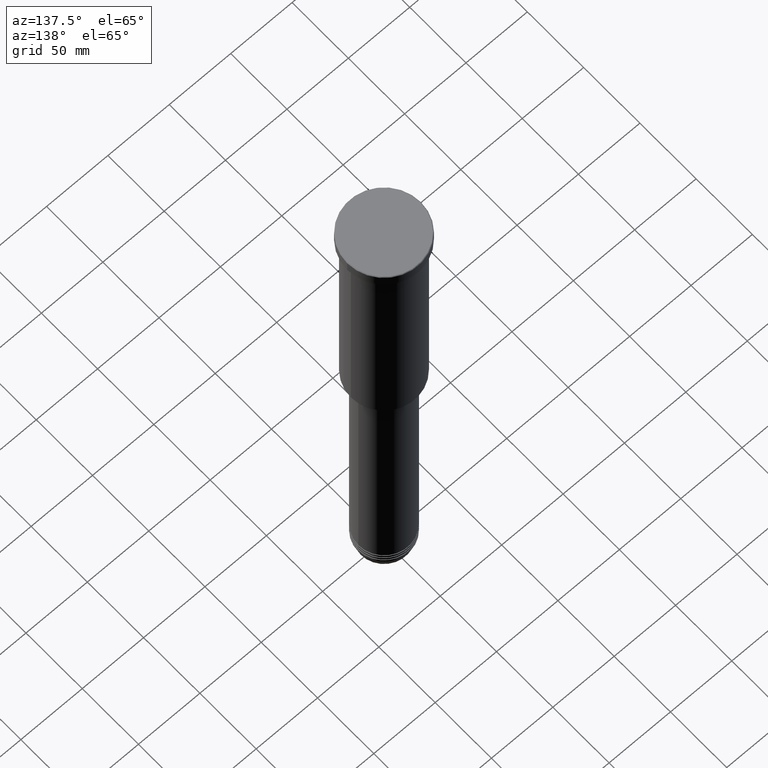
[diagram: clean part render]
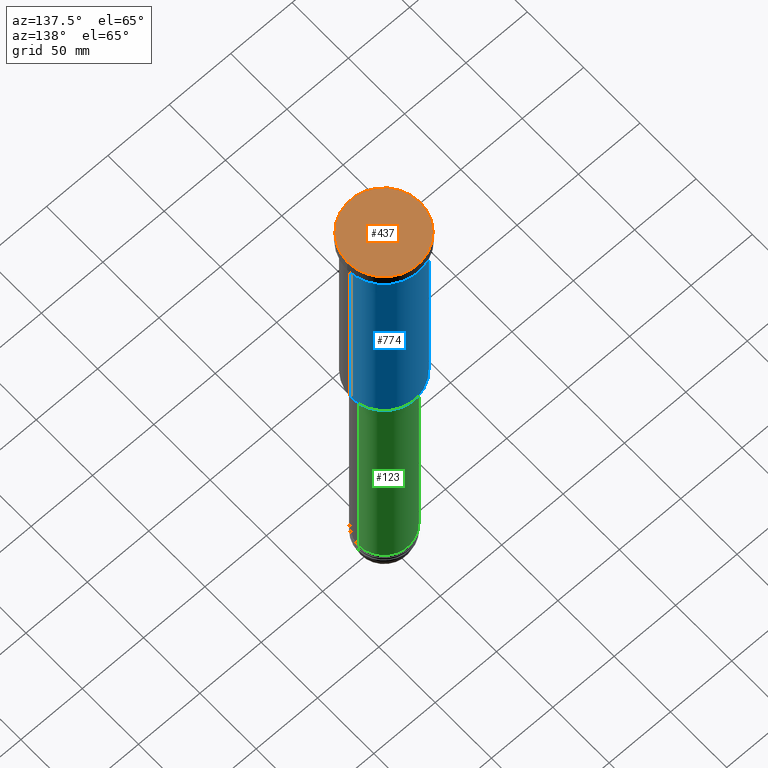
[diagram: same view with three faces highlighted in distinct colors, each labeled with its STEP entity id]
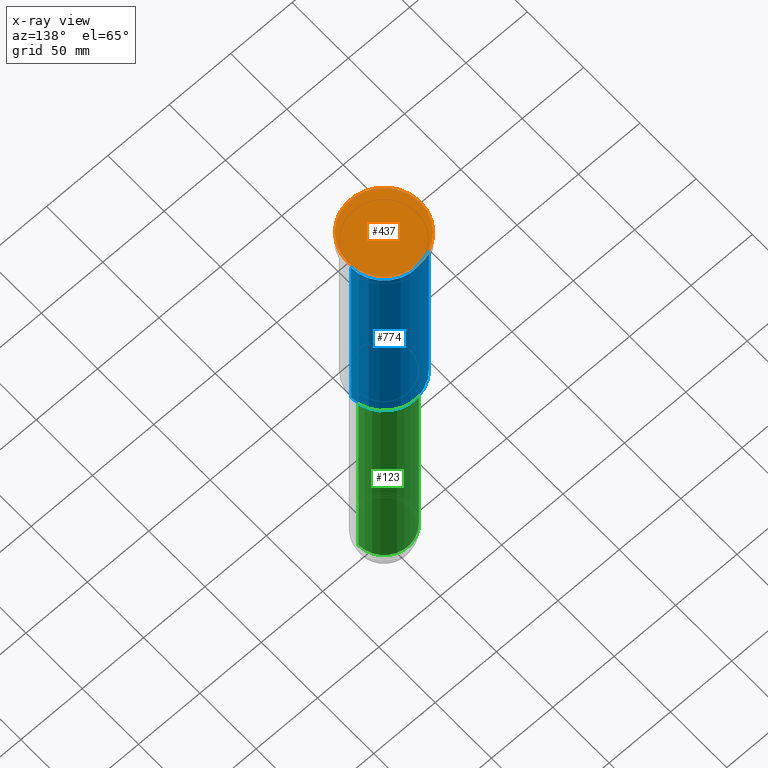
[diagram: x-ray of the same camera — body ghosted, the three highlighted faces saturated]
A machine part, auxiliary view with three faces highlighted in distinct colors.
The next image is the same camera in x-ray (body ghosted, the three faces saturated) — at least one of them is partly hidden behind the body in this view.
Their STEP definitions:

[orange] entity #437 — the highlighted planar face has unit normal (0, -0, 1).
#4 = CARTESIAN_POINT ( 'NONE',  ( -29.49999999999997158, 0.000000000000000000, 0.000000000000000000 ) ) ;
#17 = PLANE ( 'NONE',  #292 ) ;
#34 = DIRECTION ( 'NONE',  ( -0.000000000000000000, -0.000000000000000000, 1.000000000000000000 ) ) ;
#122 = DIRECTION ( 'NONE',  ( 1.000000000000000000, 0.000000000000000000, 0.000000000000000000 ) ) ;
#292 = AXIS2_PLACEMENT_3D ( 'NONE', #1019, #299, #666 ) ;
#299 = DIRECTION ( 'NONE',  ( 0.000000000000000000, -0.000000000000000000, 1.000000000000000000 ) ) ;
#409 = FACE_OUTER_BOUND ( 'NONE', #523, .T. ) ;
#423 = CIRCLE ( 'NONE', #1026, 29.49999999999997158 ) ;
#431 = CIRCLE ( 'NONE', #1093, 29.49999999999997158 ) ;
#437 = ADVANCED_FACE ( 'NONE', ( #409 ), #17, .T. ) ;
#491 = VERTEX_POINT ( 'NONE', #1010 ) ;
#523 = EDGE_LOOP ( 'NONE', ( #1035, #1135 ) ) ;
#634 = CARTESIAN_POINT ( 'NONE',  ( 0.000000000000000000, 0.000000000000000000, 0.000000000000000000 ) ) ;
#666 = DIRECTION ( 'NONE',  ( 1.000000000000000000, 0.000000000000000000, 0.000000000000000000 ) ) ;
#723 = EDGE_CURVE ( 'NONE', #779, #491, #423, .T. ) ;
#779 = VERTEX_POINT ( 'NONE', #4 ) ;
#939 = CARTESIAN_POINT ( 'NONE',  ( 0.000000000000000000, 0.000000000000000000, 0.000000000000000000 ) ) ;
#992 = DIRECTION ( 'NONE',  ( -0.000000000000000000, -0.000000000000000000, 1.000000000000000000 ) ) ;
#1010 = CARTESIAN_POINT ( 'NONE',  ( 29.49999999999997158, 3.643324227463373813E-15, 0.000000000000000000 ) ) ;
#1019 = CARTESIAN_POINT ( 'NONE',  ( 0.000000000000000000, 0.000000000000000000, 0.000000000000000000 ) ) ;
#1026 = AXIS2_PLACEMENT_3D ( 'NONE', #634, #992, #1167 ) ;
#1035 = ORIENTED_EDGE ( 'NONE', *, *, #723, .T. ) ;
#1093 = AXIS2_PLACEMENT_3D ( 'NONE', #939, #34, #122 ) ;
#1135 = ORIENTED_EDGE ( 'NONE', *, *, #1170, .T. ) ;
#1167 = DIRECTION ( 'NONE',  ( 1.000000000000000000, 0.000000000000000000, 0.000000000000000000 ) ) ;
#1170 = EDGE_CURVE ( 'NONE', #491, #779, #431, .T. ) ;

[blue] entity #774 — the highlighted cylindrical surface (partial cylindrical patch) has radius 27 mm, axis along (-0, -0, 1).
#11 = CARTESIAN_POINT ( 'NONE',  ( 0.000000000000000000, 0.000000000000000000, -195.4999999999999716 ) ) ;
#21 = ORIENTED_EDGE ( 'NONE', *, *, #1065, .F. ) ;
#79 = CARTESIAN_POINT ( 'NONE',  ( -27.00000000000000355, 3.306546357697854128E-15, -10.99999999999999289 ) ) ;
#110 = LINE ( 'NONE', #484, #174 ) ;
#135 = VERTEX_POINT ( 'NONE', #936 ) ;
#174 = VECTOR ( 'NONE', #1177, 1000.000000000000000 ) ;
#195 = AXIS2_PLACEMENT_3D ( 'NONE', #735, #1100, #558 ) ;
#204 = ORIENTED_EDGE ( 'NONE', *, *, #849, .T. ) ;
#239 = EDGE_CURVE ( 'NONE', #259, #881, #482, .T. ) ;
#259 = VERTEX_POINT ( 'NONE', #342 ) ;
#277 = CYLINDRICAL_SURFACE ( 'NONE', #853, 27.00000000000000355 ) ;
#278 = VECTOR ( 'NONE', #809, 1000.000000000000000 ) ;
#287 = DIRECTION ( 'NONE',  ( -0.000000000000000000, -0.000000000000000000, 1.000000000000000000 ) ) ;
#342 = CARTESIAN_POINT ( 'NONE',  ( 27.00000000000000355, 0.000000000000000000, -10.99999999999999289 ) ) ;
#379 = CARTESIAN_POINT ( 'NONE',  ( 0.000000000000000000, 0.000000000000000000, 0.000000000000000000 ) ) ;
#453 = LINE ( 'NONE', #1175, #278 ) ;
#482 = CIRCLE ( 'NONE', #195, 27.00000000000000355 ) ;
#484 = CARTESIAN_POINT ( 'NONE',  ( 27.00000000000000355, 0.000000000000000000, 0.000000000000000000 ) ) ;
#558 = DIRECTION ( 'NONE',  ( 1.000000000000000000, 0.000000000000000000, 0.000000000000000000 ) ) ;
#684 = CIRCLE ( 'NONE', #1165, 27.00000000000000355 ) ;
#689 = EDGE_CURVE ( 'NONE', #135, #881, #453, .T. ) ;
#719 = DIRECTION ( 'NONE',  ( -0.000000000000000000, -0.000000000000000000, 1.000000000000000000 ) ) ;
#735 = CARTESIAN_POINT ( 'NONE',  ( 0.000000000000000000, 0.000000000000000000, -10.99999999999999289 ) ) ;
#774 = ADVANCED_FACE ( 'NONE', ( #903 ), #277, .T. ) ;
#809 = DIRECTION ( 'NONE',  ( -0.000000000000000000, -0.000000000000000000, 1.000000000000000000 ) ) ;
#840 = EDGE_LOOP ( 'NONE', ( #204, #923, #951, #21 ) ) ;
#849 = EDGE_CURVE ( 'NONE', #1182, #135, #684, .T. ) ;
#853 = AXIS2_PLACEMENT_3D ( 'NONE', #379, #719, #914 ) ;
#881 = VERTEX_POINT ( 'NONE', #79 ) ;
#903 = FACE_OUTER_BOUND ( 'NONE', #840, .T. ) ;
#914 = DIRECTION ( 'NONE',  ( 1.000000000000000000, 0.000000000000000000, 0.000000000000000000 ) ) ;
#923 = ORIENTED_EDGE ( 'NONE', *, *, #689, .T. ) ;
#936 = CARTESIAN_POINT ( 'NONE',  ( -27.00000000000000355, 3.306546357697854128E-15, -195.4999999999999716 ) ) ;
#951 = ORIENTED_EDGE ( 'NONE', *, *, #239, .F. ) ;
#984 = DIRECTION ( 'NONE',  ( -1.000000000000000000, 0.000000000000000000, 0.000000000000000000 ) ) ;
#1065 = EDGE_CURVE ( 'NONE', #1182, #259, #110, .T. ) ;
#1100 = DIRECTION ( 'NONE',  ( -0.000000000000000000, -0.000000000000000000, 1.000000000000000000 ) ) ;
#1130 = CARTESIAN_POINT ( 'NONE',  ( 27.00000000000000355, 0.000000000000000000, -195.4999999999999716 ) ) ;
#1165 = AXIS2_PLACEMENT_3D ( 'NONE', #11, #287, #984 ) ;
#1175 = CARTESIAN_POINT ( 'NONE',  ( -27.00000000000000355, 3.306546357697854128E-15, 0.000000000000000000 ) ) ;
#1177 = DIRECTION ( 'NONE',  ( -0.000000000000000000, -0.000000000000000000, 1.000000000000000000 ) ) ;
#1182 = VERTEX_POINT ( 'NONE', #1130 ) ;

[green] entity #123 — the highlighted cylindrical surface (edge-blend (fillet) strip) has radius 21 mm, axis along (-0, -0, 1).
#50 = FACE_OUTER_BOUND ( 'NONE', #773, .T. ) ;
#102 = CARTESIAN_POINT ( 'NONE',  ( -21.00000000000000000, 2.571758278209441661E-15, -414.0000000000000000 ) ) ;
#123 = ADVANCED_FACE ( 'NONE', ( #50 ), #240, .T. ) ;
#169 = CARTESIAN_POINT ( 'NONE',  ( -21.00000000000000000, 2.571758278209441661E-15, 0.000000000000000000 ) ) ;
#233 = AXIS2_PLACEMENT_3D ( 'NONE', #904, #457, #373 ) ;
#240 = CYLINDRICAL_SURFACE ( 'NONE', #1143, 21.00000000000000000 ) ;
#241 = DIRECTION ( 'NONE',  ( -0.000000000000000000, -0.000000000000000000, 1.000000000000000000 ) ) ;
#265 = VERTEX_POINT ( 'NONE', #777 ) ;
#280 = LINE ( 'NONE', #1005, #420 ) ;
#373 = DIRECTION ( 'NONE',  ( 1.000000000000000000, 0.000000000000000000, 0.000000000000000000 ) ) ;
#420 = VECTOR ( 'NONE', #814, 1000.000000000000000 ) ;
#457 = DIRECTION ( 'NONE',  ( -0.000000000000000000, -0.000000000000000000, 1.000000000000000000 ) ) ;
#466 = ORIENTED_EDGE ( 'NONE', *, *, #827, .T. ) ;
#476 = VERTEX_POINT ( 'NONE', #102 ) ;
#514 = CARTESIAN_POINT ( 'NONE',  ( 0.000000000000000000, 0.000000000000000000, -196.9999999999999147 ) ) ;
#595 = VECTOR ( 'NONE', #740, 1000.000000000000000 ) ;
#625 = VERTEX_POINT ( 'NONE', #1137 ) ;
#631 = ORIENTED_EDGE ( 'NONE', *, *, #981, .F. ) ;
#662 = EDGE_CURVE ( 'NONE', #265, #625, #786, .T. ) ;
#691 = CARTESIAN_POINT ( 'NONE',  ( 0.000000000000000000, 0.000000000000000000, 0.000000000000000000 ) ) ;
#737 = VERTEX_POINT ( 'NONE', #1076 ) ;
#740 = DIRECTION ( 'NONE',  ( -0.000000000000000000, -0.000000000000000000, 1.000000000000000000 ) ) ;
#773 = EDGE_LOOP ( 'NONE', ( #924, #466, #1103, #631 ) ) ;
#777 = CARTESIAN_POINT ( 'NONE',  ( 21.00000000000000000, 0.000000000000000000, -196.9999999999999147 ) ) ;
#780 = CIRCLE ( 'NONE', #233, 21.00000000000000000 ) ;
#786 = CIRCLE ( 'NONE', #878, 21.00000000000000000 ) ;
#814 = DIRECTION ( 'NONE',  ( -0.000000000000000000, -0.000000000000000000, 1.000000000000000000 ) ) ;
#815 = EDGE_CURVE ( 'NONE', #737, #476, #780, .T. ) ;
#827 = EDGE_CURVE ( 'NONE', #476, #625, #994, .T. ) ;
#878 = AXIS2_PLACEMENT_3D ( 'NONE', #514, #241, #946 ) ;
#904 = CARTESIAN_POINT ( 'NONE',  ( 0.000000000000000000, 0.000000000000000000, -414.0000000000000000 ) ) ;
#924 = ORIENTED_EDGE ( 'NONE', *, *, #815, .T. ) ;
#946 = DIRECTION ( 'NONE',  ( 1.000000000000000000, 0.000000000000000000, 0.000000000000000000 ) ) ;
#981 = EDGE_CURVE ( 'NONE', #737, #265, #280, .T. ) ;
#994 = LINE ( 'NONE', #169, #595 ) ;
#1005 = CARTESIAN_POINT ( 'NONE',  ( 21.00000000000000000, 0.000000000000000000, 0.000000000000000000 ) ) ;
#1050 = DIRECTION ( 'NONE',  ( 1.000000000000000000, 0.000000000000000000, 0.000000000000000000 ) ) ;
#1076 = CARTESIAN_POINT ( 'NONE',  ( 21.00000000000000000, 0.000000000000000000, -414.0000000000000000 ) ) ;
#1103 = ORIENTED_EDGE ( 'NONE', *, *, #662, .F. ) ;
#1125 = DIRECTION ( 'NONE',  ( -0.000000000000000000, -0.000000000000000000, 1.000000000000000000 ) ) ;
#1137 = CARTESIAN_POINT ( 'NONE',  ( -21.00000000000000000, 2.571758278209441661E-15, -196.9999999999999147 ) ) ;
#1143 = AXIS2_PLACEMENT_3D ( 'NONE', #691, #1125, #1050 ) ;